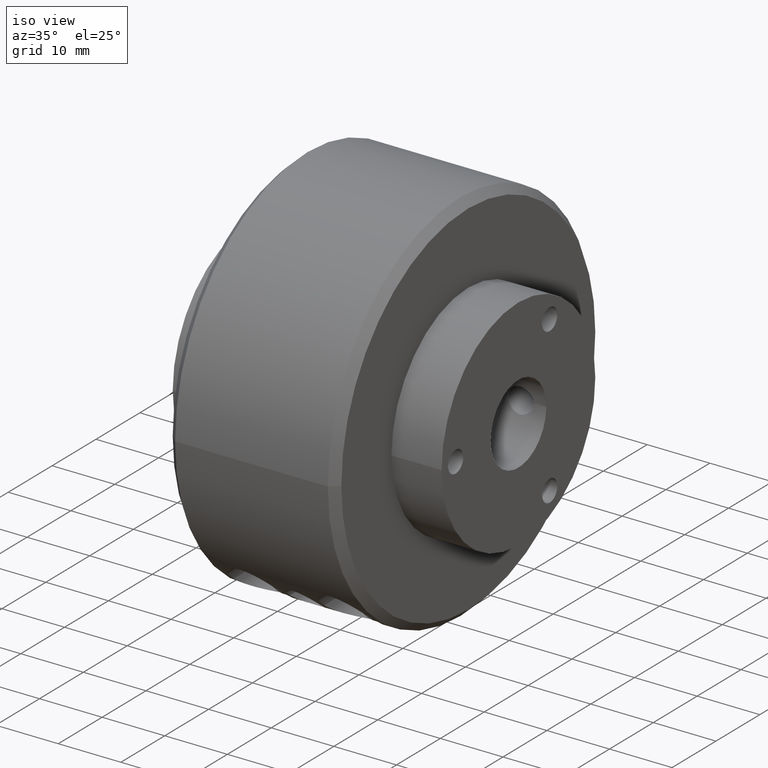
[diagram: clean part render]
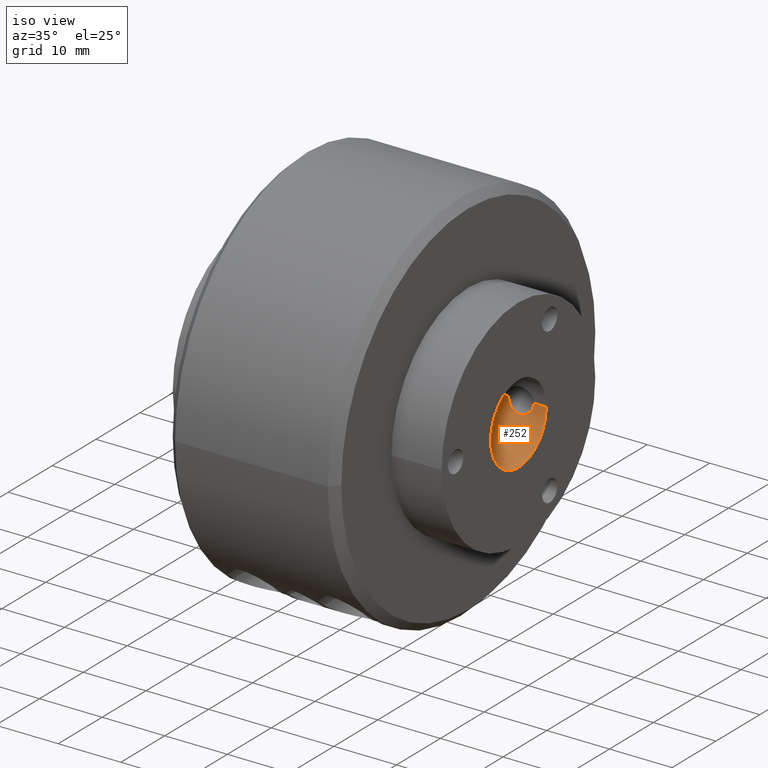
[diagram: same view with one face highlighted and labeled with its STEP entity id]
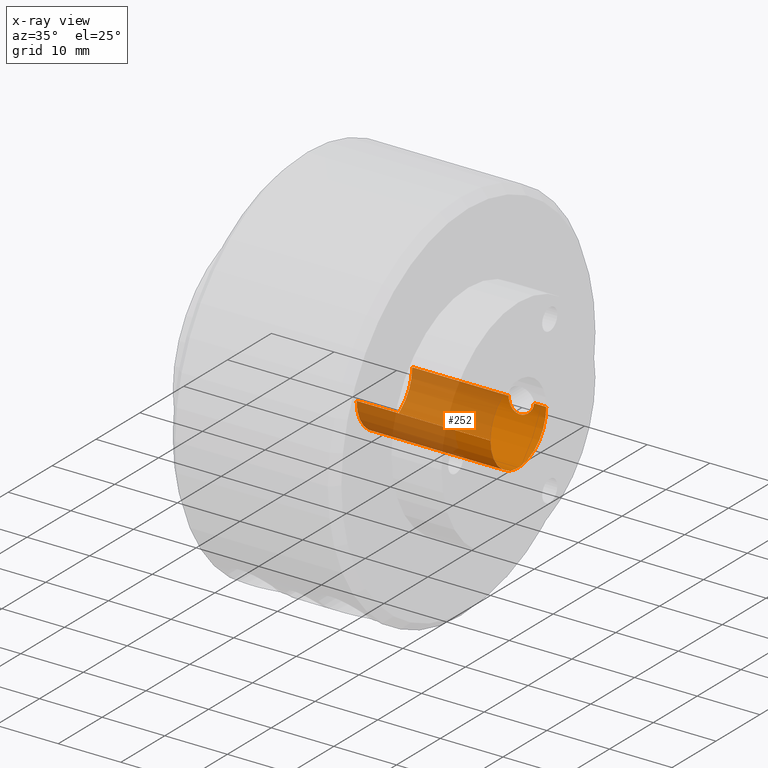
[diagram: x-ray of the same camera — body ghosted, the highlighted face saturated]
A machine part, iso view. The second image highlights one B-rep face of the part: STEP entity #252.
The next image is the same camera in x-ray: the body ghosted, the highlighted face saturated — about 65% of this face is hidden behind the body in this view.
In plain terms, the highlighted cylindrical surface (partial cylindrical patch) has radius 6.35 mm, axis along (1, 0, -0).
Its self-contained STEP definition (entity closure, byte-faithful):
#252 = ADVANCED_FACE ( 'NONE', ( #2104 ), #2113, .F. ) ;
#298 = CARTESIAN_POINT ( 'NONE',  ( 0.6874999999999887900, 0.2370226782398667200, -0.07950000000000750900 ) ) ;
#332 = DIRECTION ( 'NONE',  ( 1.000000000000000000, 1.193989507720394800E-016, -0.0000000000000000000 ) ) ;
#333 = CARTESIAN_POINT ( 'NONE',  ( -0.8450000000000003100, 0.2500000000000000000, 0.0000000000000000000 ) ) ;
#334 = DIRECTION ( 'NONE',  ( 1.000000000000000000, 1.193989507720394800E-016, -0.0000000000000000000 ) ) ;
#335 = DIRECTION ( 'NONE',  ( 0.0000000000000000000, 0.0000000000000000000, -1.000000000000000000 ) ) ;
#336 = DIRECTION ( 'NONE',  ( 1.000000000000000000, 0.0000000000000000000, 0.0000000000000000000 ) ) ;
#338 = DIRECTION ( 'NONE',  ( 1.000000000000000000, 1.193989507720394800E-016, -0.0000000000000000000 ) ) ;
#340 = CARTESIAN_POINT ( 'NONE',  ( -0.8450000000000003100, -0.2500000000000000000, 3.061616997868383000E-017 ) ) ;
#342 = CARTESIAN_POINT ( 'NONE',  ( 0.002500000000000000100, -1.293132247478720600E-017, 0.0000000000000000000 ) ) ;
#346 = CARTESIAN_POINT ( 'NONE',  ( -0.8450000000000003100, 0.2500000000000000000, 0.0000000000000000000 ) ) ;
#354 = CARTESIAN_POINT ( 'NONE',  ( 0.6874999999999887900, 0.2370226782398667200, -0.07950000000000750900 ) ) ;
#355 = CARTESIAN_POINT ( 'NONE',  ( 0.6927389800946056600, 0.2370226782398680800, -0.07950000000000044500 ) ) ;
#357 = CARTESIAN_POINT ( 'NONE',  ( 0.6980332702251227400, 0.2372020766223073300, -0.07897045263795761400 ) ) ;
#358 = CARTESIAN_POINT ( 'NONE',  ( 0.7082287904200921200, 0.2378729873789362500, -0.07692593463325130000 ) ) ;
#359 = CARTESIAN_POINT ( 'NONE',  ( 0.7131963401988488100, 0.2383632546121480800, -0.07541477449684048900 ) ) ;
#360 = CARTESIAN_POINT ( 'NONE',  ( 0.7277061080936108000, 0.2402170646035735300, -0.06937924271755922800 ) ) ;
#361 = CARTESIAN_POINT ( 'NONE',  ( 0.7363754933568741300, 0.2419040722205644000, -0.06355418645470645200 ) ) ;
#363 = CARTESIAN_POINT ( 'NONE',  ( 0.7473830226702570200, 0.2444442277506875500, -0.05254710470209592700 ) ) ;
#364 = CARTESIAN_POINT ( 'NONE',  ( 0.7506533721384310900, 0.2452761752109848000, -0.04856590648971095800 ) ) ;
#365 = CARTESIAN_POINT ( 'NONE',  ( 0.7564131058916011600, 0.2468219396190331200, -0.03997473604660108800 ) ) ;
#366 = CARTESIAN_POINT ( 'NONE',  ( 0.7589106748106967400, 0.2475391015329867500, -0.03532315389741453500 ) ) ;
#367 = CARTESIAN_POINT ( 'NONE',  ( 0.7648923640047851100, 0.2493086786487916400, -0.02094064723136024000 ) ) ;
#368 = CARTESIAN_POINT ( 'NONE',  ( 0.7670000000000001300, 0.2500000000000002200, -0.01042012542068976800 ) ) ;
#372 = CARTESIAN_POINT ( 'NONE',  ( 0.7669999999999997900, 0.2500000000000002200, -1.653689985225253800E-021 ) ) ;
#379 = DIRECTION ( 'NONE',  ( 0.0000000000000000000, 1.000000000000000000, 0.0000000000000000000 ) ) ;
#380 = DIRECTION ( 'NONE',  ( 1.000000000000000000, 1.193989507720394800E-016, 0.0000000000000000000 ) ) ;
#383 = CARTESIAN_POINT ( 'NONE',  ( 0.8450000000000003100, 1.888529043299595600E-016, 0.0000000000000000000 ) ) ;
#400 = CARTESIAN_POINT ( 'NONE',  ( 0.6080000000000002100, 0.2500000000000001700, 5.718417378072618100E-017 ) ) ;
#402 = CARTESIAN_POINT ( 'NONE',  ( 0.6080000000000001000, 0.2500000000000002200, -0.005288472084370424500 ) ) ;
#403 = CARTESIAN_POINT ( 'NONE',  ( 0.6085227025542053700, 0.2498323848514184500, -0.01048746498761049400 ) ) ;
#404 = CARTESIAN_POINT ( 'NONE',  ( 0.6105672025876897100, 0.2491936241688165700, -0.02070616130585899900 ) ) ;
#405 = CARTESIAN_POINT ( 'NONE',  ( 0.6121168133494950800, 0.2487141409892768300, -0.02578107797669464800 ) ) ;
#406 = CARTESIAN_POINT ( 'NONE',  ( 0.6161172410862556500, 0.2475310028432533800, -0.03538065207267310200 ) ) ;
#407 = CARTESIAN_POINT ( 'NONE',  ( 0.6185592897158301900, 0.2468296429826923000, -0.03992785472010609200 ) ) ;
#409 = CARTESIAN_POINT ( 'NONE',  ( 0.6243201636331864300, 0.2452829852309670600, -0.04853208622858060800 ) ) ;
#410 = CARTESIAN_POINT ( 'NONE',  ( 0.6276575892590092700, 0.2444346310524926100, -0.05258977246824504000 ) ) ;
#411 = CARTESIAN_POINT ( 'NONE',  ( 0.6385910143526208900, 0.2419122523043307200, -0.06351656704487013100 ) ) ;
#412 = CARTESIAN_POINT ( 'NONE',  ( 0.6473931988239842700, 0.2402043963507308200, -0.06942047510002979900 ) ) ;
#413 = CARTESIAN_POINT ( 'NONE',  ( 0.6617532645796470000, 0.2383696835090767800, -0.07539384975656748800 ) ) ;
#414 = CARTESIAN_POINT ( 'NONE',  ( 0.6668180737818143500, 0.2378682282802263800, -0.07694066399265542300 ) ) ;
#416 = CARTESIAN_POINT ( 'NONE',  ( 0.6770768928329471400, 0.2371965284655221100, -0.07898712986752530500 ) ) ;
#421 = CARTESIAN_POINT ( 'NONE',  ( 0.6822608584552319900, 0.2370226782398685300, -0.07949999999999907100 ) ) ;
#454 = CARTESIAN_POINT ( 'NONE',  ( -0.8450000000000003100, -1.293132247478720600E-017, 0.0000000000000000000 ) ) ;
#455 = DIRECTION ( 'NONE',  ( 1.000000000000000000, 1.193989507720394800E-016, -0.0000000000000000000 ) ) ;
#459 = DIRECTION ( 'NONE',  ( 0.0000000000000000000, 1.000000000000000000, 0.0000000000000000000 ) ) ;
#812 = VERTEX_POINT ( 'NONE', #1540 ) ;
#833 = VERTEX_POINT ( 'NONE', #1552 ) ;
#835 = VERTEX_POINT ( 'NONE', #1553 ) ;
#836 = VERTEX_POINT ( 'NONE', #1554 ) ;
#854 = VERTEX_POINT ( 'NONE', #1565 ) ;
#892 = VERTEX_POINT ( 'NONE', #1587 ) ;
#917 = VERTEX_POINT ( 'NONE', #1602 ) ;
#1540 = CARTESIAN_POINT ( 'NONE',  ( 0.002500000000000000100, 0.2500000000000000000, 0.0000000000000000000 ) ) ;
#1552 = CARTESIAN_POINT ( 'NONE',  ( 0.8450000000000003100, 0.2500000000000002200, 0.0000000000000000000 ) ) ;
#1553 = CARTESIAN_POINT ( 'NONE',  ( 0.6080000000000002100, 0.2500000000000001700, 5.718417378072618100E-017 ) ) ;
#1554 = CARTESIAN_POINT ( 'NONE',  ( 0.002500000000000000100, -0.2499999999999999700, 3.061616997868384300E-017 ) ) ;
#1565 = CARTESIAN_POINT ( 'NONE',  ( 0.8450000000000003100, -0.2499999999999998100, 3.061616997868383000E-017 ) ) ;
#1587 = CARTESIAN_POINT ( 'NONE',  ( 0.6874999999999887900, 0.2370226782398667200, -0.07950000000000750900 ) ) ;
#1602 = CARTESIAN_POINT ( 'NONE',  ( 0.7669999999999997900, 0.2500000000000002200, -1.653689985225253800E-021 ) ) ;
#1741 = EDGE_CURVE ( 'NONE', #892, #835, #3022, .T. ) ;
#1748 = EDGE_CURVE ( 'NONE', #854, #833, #2566, .T. ) ;
#1752 = EDGE_CURVE ( 'NONE', #917, #892, #3014, .T. ) ;
#1757 = EDGE_CURVE ( 'NONE', #836, #854, #2577, .T. ) ;
#1758 = EDGE_CURVE ( 'NONE', #836, #812, #2581, .T. ) ;
#1759 = EDGE_CURVE ( 'NONE', #917, #833, #2580, .T. ) ;
#1760 = EDGE_CURVE ( 'NONE', #812, #835, #2582, .T. ) ;
#1903 = AXIS2_PLACEMENT_3D ( 'NONE', #454, #455, #459 ) ;
#2104 = FACE_OUTER_BOUND ( 'NONE', #3770, .T. ) ;
#2113 = CYLINDRICAL_SURFACE ( 'NONE', #1903, 0.2500000000000000000 ) ;
#2378 = AXIS2_PLACEMENT_3D ( 'NONE', #383, #380, #379 ) ;
#2382 = AXIS2_PLACEMENT_3D ( 'NONE', #342, #336, #335 ) ;
#2566 = CIRCLE ( 'NONE', #2378, 0.2500000000000000000 ) ;
#2572 = VECTOR ( 'NONE', #334, 39.37007874015748100 ) ;
#2577 = LINE ( 'NONE', #340, #2578 ) ;
#2578 = VECTOR ( 'NONE', #338, 39.37007874015748100 ) ;
#2580 = LINE ( 'NONE', #346, #2572 ) ;
#2581 = CIRCLE ( 'NONE', #2382, 0.2500000000000000000 ) ;
#2582 = LINE ( 'NONE', #333, #2583 ) ;
#2583 = VECTOR ( 'NONE', #332, 39.37007874015748100 ) ;
#3014 = B_SPLINE_CURVE_WITH_KNOTS ( 'NONE', 3,
 ( #372, #368, #367, #366, #365, #364, #363, #361, #360, #359, #358, #357, #355, #354 ),
 .UNSPECIFIED., .F., .F.,
 ( 4, 2, 2, 2, 2, 2, 4 ),
 ( 0.006354783613968829900, 0.007148910168296572500, 0.007545973445460442900, 0.007943036722624313400, 0.008737163276952062900, 0.009134226554115937700, 0.009531289831279812400 ),
 .UNSPECIFIED. ) ;
#3022 = B_SPLINE_CURVE_WITH_KNOTS ( 'NONE', 3,
 ( #298, #421, #416, #414, #413, #412, #411, #410, #409, #407, #406, #405, #404, #403, #402, #400 ),
 .UNSPECIFIED., .F., .F.,
 ( 4, 2, 2, 2, 2, 2, 2, 4 ),
 ( 0.009531289831279812400, 0.009928365344780044600, 0.01032544085828027800, 0.01111959188528073200, 0.01151666739878096100, 0.01191374291228118800, 0.01231081842578141800, 0.01270789393928164700 ),
 .UNSPECIFIED. ) ;
#3605 = ORIENTED_EDGE ( 'NONE', *, *, #1760, .F. ) ;
#3606 = ORIENTED_EDGE ( 'NONE', *, *, #1741, .T. ) ;
#3607 = ORIENTED_EDGE ( 'NONE', *, *, #1752, .T. ) ;
#3608 = ORIENTED_EDGE ( 'NONE', *, *, #1759, .F. ) ;
#3609 = ORIENTED_EDGE ( 'NONE', *, *, #1748, .T. ) ;
#3610 = ORIENTED_EDGE ( 'NONE', *, *, #1757, .T. ) ;
#3611 = ORIENTED_EDGE ( 'NONE', *, *, #1758, .F. ) ;
#3770 = EDGE_LOOP ( 'NONE', ( #3611, #3610, #3609, #3608, #3607, #3606, #3605 ) ) ;